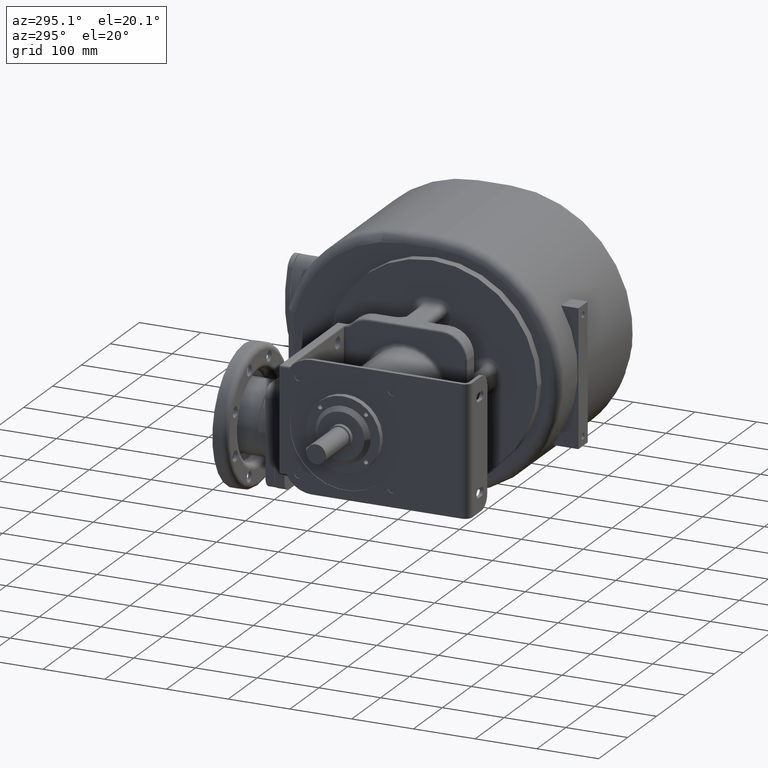
[diagram: clean part render]
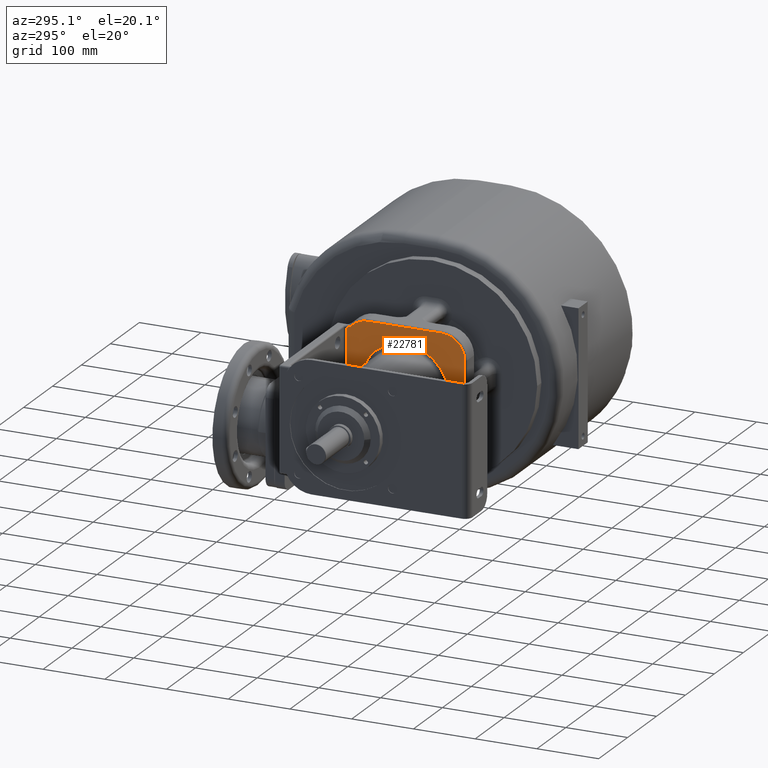
[diagram: same view with one face highlighted and labeled with its STEP entity id]
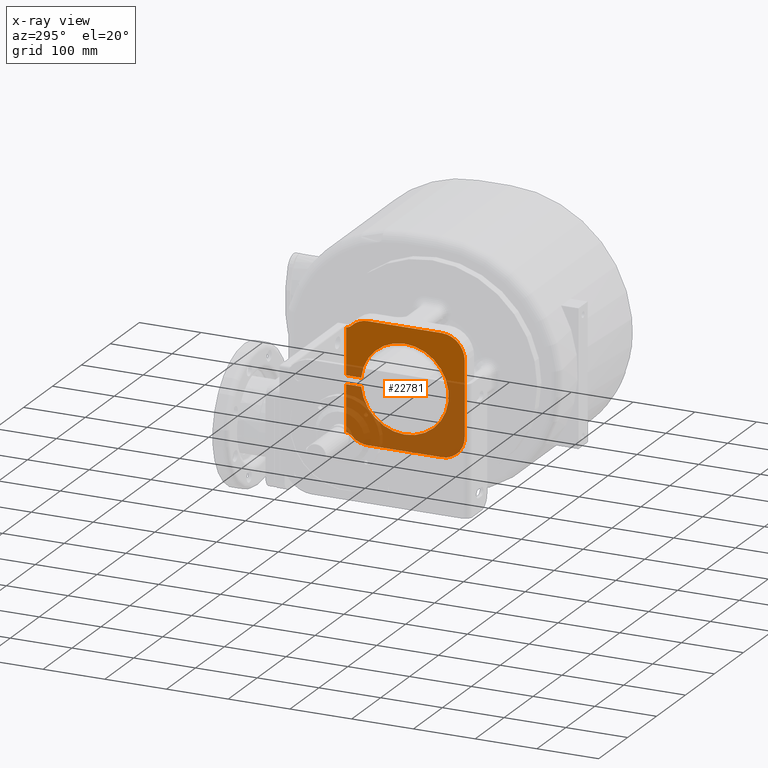
[diagram: x-ray of the same camera — body ghosted, the highlighted face saturated]
A machine part, auxiliary view. The second image highlights one B-rep face of the part: STEP entity #22781.
The next image is the same camera in x-ray: the body ghosted, the highlighted face saturated — about 56% of this face is hidden behind the body in this view.
In plain terms, the highlighted planar face has unit normal (1, 0, 0).
Its self-contained STEP definition (entity closure, byte-faithful):
#7199=DIRECTION('',(-9.206677466201E-11,-1.E0,0.E0));
#7200=VECTOR('',#7199,2.434591306960E1);
#7201=CARTESIAN_POINT('',(-1.895E2,2.95E2,-7.E0));
#7202=LINE('',#7201,#7200);
#7203=DIRECTION('',(9.206560725008E-11,1.E0,0.E0));
#7204=VECTOR('',#7203,2.434591306960E1);
#7205=CARTESIAN_POINT('',(-1.895000000022E2,2.706540869304E2,7.E0));
#7206=LINE('',#7205,#7204);
#7207=DIRECTION('',(-5.257500737378E-11,0.E0,1.E0));
#7208=VECTOR('',#7207,7.501924694057E1);
#7209=CARTESIAN_POINT('',(-1.895E2,2.95E2,7.E0));
#7210=LINE('',#7209,#7208);
#7211=CARTESIAN_POINT('',(-1.895E2,2.957071421427E2,9.5E1));
#7212=DIRECTION('',(1.E0,0.E0,0.E0));
#7213=DIRECTION('',(0.E0,-7.141428428543E-1,-7.E-1));
#7214=AXIS2_PLACEMENT_3D('',#7211,#7212,#7213);
#7216=CARTESIAN_POINT('',(-1.895E2,2.6E2,6.E1));
#7217=DIRECTION('',(-1.E0,0.E0,0.E0));
#7218=DIRECTION('',(0.E0,0.E0,1.E0));
#7219=AXIS2_PLACEMENT_3D('',#7216,#7217,#7218);
#7221=DIRECTION('',(0.E0,1.E0,0.E0));
#7222=VECTOR('',#7221,1.2E2);
#7223=CARTESIAN_POINT('',(-1.895E2,1.4E2,9.7E1));
#7224=LINE('',#7223,#7222);
#7225=CARTESIAN_POINT('',(-1.895E2,1.4E2,6.E1));
#7226=DIRECTION('',(-1.E0,0.E0,0.E0));
#7227=DIRECTION('',(0.E0,-1.E0,0.E0));
#7228=AXIS2_PLACEMENT_3D('',#7225,#7226,#7227);
#7230=DIRECTION('',(0.E0,0.E0,1.E0));
#7231=VECTOR('',#7230,1.2E2);
#7232=CARTESIAN_POINT('',(-1.895E2,1.03E2,-6.E1));
#7233=LINE('',#7232,#7231);
#7234=CARTESIAN_POINT('',(-1.895E2,1.4E2,-6.E1));
#7235=DIRECTION('',(-1.E0,0.E0,0.E0));
#7236=DIRECTION('',(0.E0,0.E0,-1.E0));
#7237=AXIS2_PLACEMENT_3D('',#7234,#7235,#7236);
#7239=DIRECTION('',(0.E0,-1.E0,0.E0));
#7240=VECTOR('',#7239,1.2E2);
#7241=CARTESIAN_POINT('',(-1.895E2,2.6E2,-9.7E1));
#7242=LINE('',#7241,#7240);
#7243=CARTESIAN_POINT('',(-1.895E2,2.6E2,-6.E1));
#7244=DIRECTION('',(-1.E0,0.E0,0.E0));
#7245=DIRECTION('',(0.E0,7.141428428543E-1,-7.E-1));
#7246=AXIS2_PLACEMENT_3D('',#7243,#7244,#7245);
#7248=CARTESIAN_POINT('',(-1.895E2,2.957071421427E2,-9.5E1));
#7249=DIRECTION('',(1.E0,0.E0,0.E0));
#7250=DIRECTION('',(0.E0,-5.439554943956E-2,9.985194661103E-1));
#7251=AXIS2_PLACEMENT_3D('',#7248,#7249,#7250);
#7253=DIRECTION('',(5.254810839183E-11,0.E0,1.E0));
#7254=VECTOR('',#7253,7.501924694057E1);
#7255=CARTESIAN_POINT('',(-1.895000000039E2,2.95E2,-8.201924694057E1));
#7256=LINE('',#7255,#7254);
#8051=CARTESIAN_POINT('',(-1.895000000022E2,2.706540869304E2,7.E0));
#8053=CARTESIAN_POINT('',(-1.895E2,2.E2,0.E0));
#8054=DIRECTION('',(1.E0,0.E0,0.E0));
#8055=DIRECTION('',(0.E0,9.951279849382E-1,9.859154929698E-2));
#8056=AXIS2_PLACEMENT_3D('',#8053,#8054,#8055);
#13369=CARTESIAN_POINT('',(-1.895E2,1.03E2,6.E1));
#13370=CARTESIAN_POINT('',(-1.895E2,1.4E2,9.7E1));
#13371=VERTEX_POINT('',#13369);
#13372=VERTEX_POINT('',#13370);
#13377=CARTESIAN_POINT('',(-1.895E2,2.6E2,9.7E1));
#13378=VERTEX_POINT('',#13377);
#13381=CARTESIAN_POINT('',(-1.895E2,2.864232851856E2,8.59E1));
#13382=VERTEX_POINT('',#13381);
#13385=CARTESIAN_POINT('',(-1.895E2,2.864232851856E2,-8.59E1));
#13386=CARTESIAN_POINT('',(-1.895E2,2.6E2,-9.7E1));
#13387=VERTEX_POINT('',#13385);
#13388=VERTEX_POINT('',#13386);
#13393=CARTESIAN_POINT('',(-1.895E2,1.4E2,-9.7E1));
#13394=VERTEX_POINT('',#13393);
#13397=CARTESIAN_POINT('',(-1.895E2,1.03E2,-6.E1));
#13398=VERTEX_POINT('',#13397);
#13445=CARTESIAN_POINT('',(-1.895E2,2.95E2,-8.201924694057E1));
#13446=VERTEX_POINT('',#13445);
#13449=CARTESIAN_POINT('',(-1.895E2,2.95E2,8.201924694057E1));
#13450=VERTEX_POINT('',#13449);
#13461=CARTESIAN_POINT('',(-1.895E2,2.95E2,-7.E0));
#13462=CARTESIAN_POINT('',(-1.895000000022E2,2.706540869304E2,-7.E0));
#13463=VERTEX_POINT('',#13461);
#13464=VERTEX_POINT('',#13462);
#13491=VERTEX_POINT('',#8051);
#13492=CARTESIAN_POINT('',(-1.895E2,2.95E2,7.E0));
#13493=VERTEX_POINT('',#13492);
#22747=CARTESIAN_POINT('',(-1.895E2,2.E2,0.E0));
#22748=DIRECTION('',(1.E0,0.E0,0.E0));
#22749=DIRECTION('',(0.E0,0.E0,1.E0));
#22750=AXIS2_PLACEMENT_3D('',#22747,#22748,#22749);
#22751=PLANE('',#22750);
#22753=ORIENTED_EDGE('',*,*,#22752,.T.);
#22755=ORIENTED_EDGE('',*,*,#22754,.F.);
#22757=ORIENTED_EDGE('',*,*,#22756,.T.);
#22759=ORIENTED_EDGE('',*,*,#22758,.T.);
#22761=ORIENTED_EDGE('',*,*,#22760,.F.);
#22763=ORIENTED_EDGE('',*,*,#22762,.F.);
#22765=ORIENTED_EDGE('',*,*,#22764,.F.);
#22767=ORIENTED_EDGE('',*,*,#22766,.F.);
#22769=ORIENTED_EDGE('',*,*,#22768,.F.);
#22770=ORIENTED_EDGE('',*,*,#22737,.F.);
#22772=ORIENTED_EDGE('',*,*,#22771,.F.);
#22774=ORIENTED_EDGE('',*,*,#22773,.F.);
#22776=ORIENTED_EDGE('',*,*,#22775,.F.);
#22778=ORIENTED_EDGE('',*,*,#22777,.T.);
#22779=EDGE_LOOP('',(#22753,#22755,#22757,#22759,#22761,#22763,#22765,#22767,
#22769,#22770,#22772,#22774,#22776,#22778));
#22780=FACE_OUTER_BOUND('',#22779,.F.);
#22781=ADVANCED_FACE('',(#22780),#22751,.F.);
#7215=CIRCLE('',#7214,1.3E1);
#7220=CIRCLE('',#7219,3.7E1);
#7229=CIRCLE('',#7228,3.7E1);
#7238=CIRCLE('',#7237,3.7E1);
#7247=CIRCLE('',#7246,3.7E1);
#7252=CIRCLE('',#7251,1.3E1);
#8057=CIRCLE('',#8056,7.1E1);
#22737=EDGE_CURVE('',#13394,#13398,#7238,.T.);
#22752=EDGE_CURVE('',#13463,#13464,#7202,.T.);
#22754=EDGE_CURVE('',#13491,#13464,#8057,.T.);
#22756=EDGE_CURVE('',#13491,#13493,#7206,.T.);
#22758=EDGE_CURVE('',#13493,#13450,#7210,.T.);
#22760=EDGE_CURVE('',#13382,#13450,#7215,.T.);
#22762=EDGE_CURVE('',#13378,#13382,#7220,.T.);
#22764=EDGE_CURVE('',#13372,#13378,#7224,.T.);
#22766=EDGE_CURVE('',#13371,#13372,#7229,.T.);
#22768=EDGE_CURVE('',#13398,#13371,#7233,.T.);
#22771=EDGE_CURVE('',#13388,#13394,#7242,.T.);
#22773=EDGE_CURVE('',#13387,#13388,#7247,.T.);
#22775=EDGE_CURVE('',#13446,#13387,#7252,.T.);
#22777=EDGE_CURVE('',#13446,#13463,#7256,.T.);